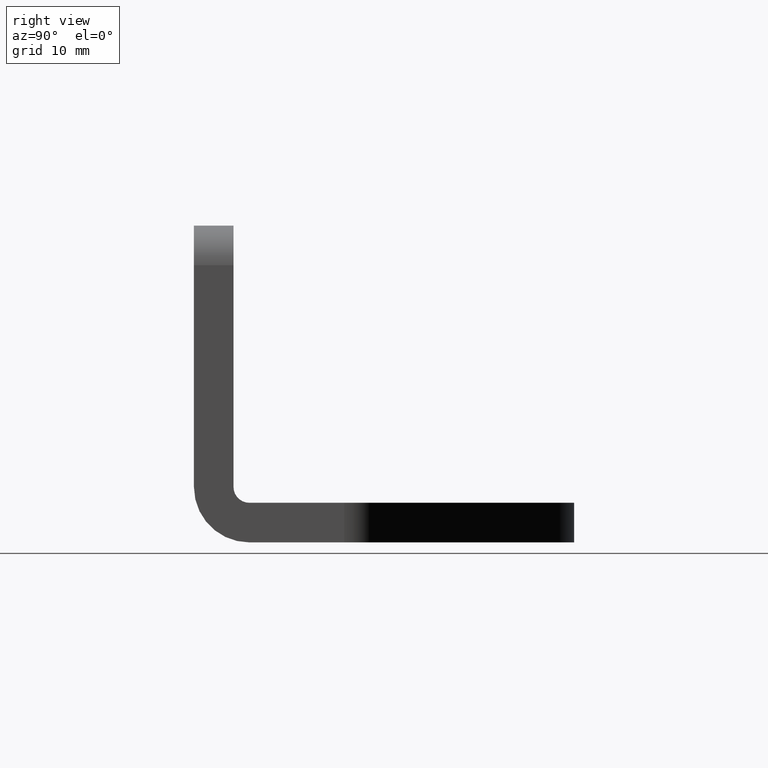
[diagram: clean part render]
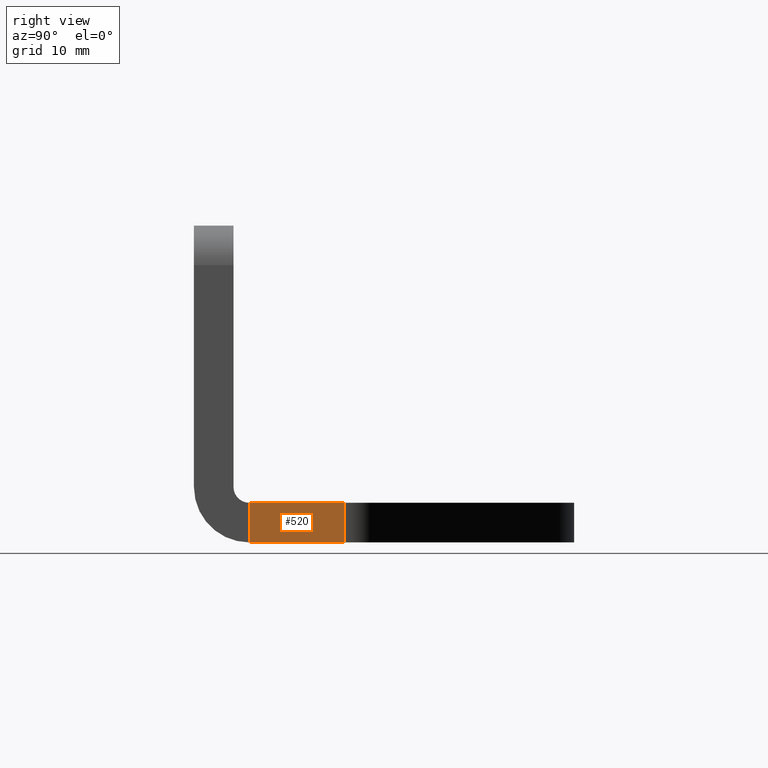
[diagram: same view with one face highlighted and labeled with its STEP entity id]
A machine part, right view. The second image highlights one B-rep face of the part: STEP entity #520.
In plain terms, the highlighted planar face has unit normal (1, 0, 0).
Its self-contained STEP definition (entity closure, byte-faithful):
#32=PLANE('',#588);
#57=FACE_OUTER_BOUND('',#90,.T.);
#90=EDGE_LOOP('',(#439,#440,#441,#442));
#133=LINE('',#858,#182);
#136=LINE('',#867,#185);
#137=LINE('',#869,#186);
#138=LINE('',#870,#187);
#182=VECTOR('',#701,10.);
#185=VECTOR('',#714,10.);
#186=VECTOR('',#715,10.);
#187=VECTOR('',#716,10.);
#253=VERTEX_POINT('',#849);
#255=VERTEX_POINT('',#857);
#256=VERTEX_POINT('',#866);
#257=VERTEX_POINT('',#868);
#316=EDGE_CURVE('',#255,#253,#133,.T.);
#320=EDGE_CURVE('',#253,#256,#136,.T.);
#321=EDGE_CURVE('',#256,#257,#137,.T.);
#322=EDGE_CURVE('',#255,#257,#138,.T.);
#439=ORIENTED_EDGE('',*,*,#316,.T.);
#440=ORIENTED_EDGE('',*,*,#320,.T.);
#441=ORIENTED_EDGE('',*,*,#321,.T.);
#442=ORIENTED_EDGE('',*,*,#322,.F.);
#520=ADVANCED_FACE('',(#57),#32,.T.);
#588=AXIS2_PLACEMENT_3D('',#865,#712,#713);
#701=DIRECTION('',(0.,0.,-1.));
#712=DIRECTION('center_axis',(1.,0.,0.));
#713=DIRECTION('ref_axis',(0.,1.,0.));
#714=DIRECTION('',(0.,1.,0.));
#715=DIRECTION('',(0.,0.,1.));
#716=DIRECTION('',(0.,1.,0.));
#849=CARTESIAN_POINT('',(92.0042552273484,233.069817976792,0.));
#857=CARTESIAN_POINT('',(92.0042552273484,233.069817976792,5.));
#858=CARTESIAN_POINT('',(92.0042552273484,233.069817976792,2.5));
#865=CARTESIAN_POINT('Origin',(92.0042552273484,226.069817976793,0.));
#866=CARTESIAN_POINT('',(92.0042552273484,245.04038072527,0.));
#867=CARTESIAN_POINT('',(92.0042552273484,226.069817976793,0.));
#868=CARTESIAN_POINT('',(92.0042552273484,245.04038072527,5.));
#869=CARTESIAN_POINT('',(92.0042552273484,245.04038072527,0.));
#870=CARTESIAN_POINT('',(92.0042552273484,226.069817976793,5.));